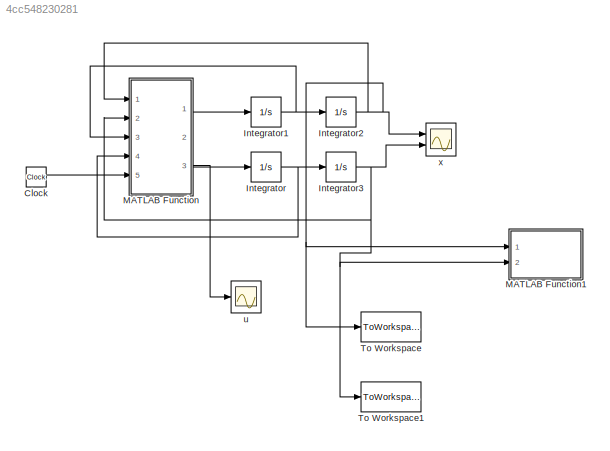
MODEL slx_4cc548230281
KIND model
CONFIG AbsTol = auto
CONFIG FixedStep = 0.01
CONFIG MaxStep = auto
CONFIG MinStep = auto
CONFIG RelTol = 1e-3
CONFIG SampleTimeConstraint = Unconstrained
CONFIG Solver = FixedStepAuto
CONFIG SolverMode = Auto
CONFIG SolverName = FixedStepAuto
CONFIG StartTime = 0.0
CONFIG StopTime = 50
BLOCK [Clock] Clock
BLOCK [Integrator] Integrator
  Ports = [1, 1]
BLOCK [Integrator] Integrator1
  Ports = [1, 1]
BLOCK [Integrator] Integrator2
  InitialCondition = pi/2
  Ports = [1, 1]
  WrapState = on
BLOCK [Integrator] Integrator3
  InitialCondition = -pi/2
  Ports = [1, 1]
  WrapState = on
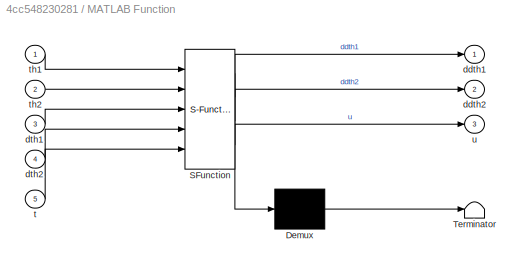
BLOCK [SubSystem] MATLAB Function
  ErrorFcn = Stateflow.Translate.translate
  PermitHierarchicalResolution = ExplicitOnly
  Ports = [5, 3]
  RequestExecContextInheritance = off
  SFBlockType = MATLAB Function
  TreatAsAtomicUnit = on
  Variant = off
BLOCK [Demux] MATLAB Function/ Demux 
  Outputs = 1
  Ports = [1, 1]
BLOCK [S-Function] MATLAB Function/ SFunction 
  EnableBusSupport = on
  FunctionName = sf_sfun
  PortCounts = [5 4]
  Ports = [5, 4]
  SFunctionDeploymentMode = off
  Tag = Stateflow S-Function pendubotSim 2
BLOCK [Terminator] MATLAB Function/ Terminator 
BLOCK [Outport] MATLAB Function/ddth1
  IconDisplay = Port number
BLOCK [Outport] MATLAB Function/ddth2
  IconDisplay = Port number
  Port = 2
BLOCK [Inport] MATLAB Function/dth1
  IconDisplay = Port number
  Port = 3
BLOCK [Inport] MATLAB Function/dth2
  IconDisplay = Port number
  Port = 4
BLOCK [Inport] MATLAB Function/t
  IconDisplay = Port number
  Port = 5
BLOCK [Inport] MATLAB Function/th1
  IconDisplay = Port number
BLOCK [Inport] MATLAB Function/th2
  IconDisplay = Port number
  Port = 2
BLOCK [Outport] MATLAB Function/u
  IconDisplay = Port number
  Port = 3
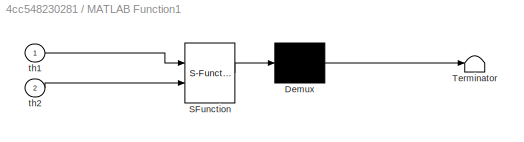
BLOCK [SubSystem] MATLAB Function1
  Commented = on
  ErrorFcn = Stateflow.Translate.translate
  PermitHierarchicalResolution = ExplicitOnly
  Ports = [2]
  RequestExecContextInheritance = off
  SFBlockType = MATLAB Function
  TreatAsAtomicUnit = on
  Variant = off
BLOCK [Demux] MATLAB Function1/ Demux 
  Outputs = 1
  Ports = [1, 1]
BLOCK [S-Function] MATLAB Function1/ SFunction 
  EnableBusSupport = on
  FunctionName = sf_sfun
  PortCounts = [2 1]
  Ports = [2, 1]
  SFunctionDeploymentMode = off
  Tag = Stateflow S-Function pendubotSim 1
BLOCK [Terminator] MATLAB Function1/ Terminator 
BLOCK [Inport] MATLAB Function1/th1
  IconDisplay = Port number
BLOCK [Inport] MATLAB Function1/th2
  IconDisplay = Port number
  Port = 2
BLOCK [ToWorkspace] To Workspace
  FixptAsFi = on
  MaxDataPoints = inf
  Ports = [1]
  SampleTime = -1
  Save2DSignal = 3-D array (concatenate along third dimension)
  VariableName = th1Sim
BLOCK [ToWorkspace] To Workspace1
  FixptAsFi = on
  MaxDataPoints = inf
  Ports = [1]
  SampleTime = -1
  Save2DSignal = 3-D array (concatenate along third dimension)
  VariableName = th2Sim
BLOCK [Scope] u
  Ports = [1]
  ScopeSpecificationString = Simulink.scopes.TimeScopeBlockCfg('CurrentConfiguration', extmgr.ConfigurationSet(extmgr.Configuration('Core','General UI',true),extmgr.Configuration('Core','Source UI',true),extmgr.Configuration('Sources','WiredSimulink',true,'DataLoggingVariableName','ScopeData1'),extmgr.Configuration('Visuals','Time Domain',true,'SerializedDisplays',{struct('MinYLimReal','-11.31655','MaxYLimReal','11.31201','YL...<+1411ch>
BLOCK [Scope] x
  NumInputPorts = 2
  Ports = [2]
  ScopeSpecificationString = Simulink.scopes.TimeScopeBlockCfg('CurrentConfiguration', extmgr.ConfigurationSet(extmgr.Configuration('Core','General UI',true),extmgr.Configuration('Core','Source UI',true),extmgr.Configuration('Sources','WiredSimulink',true),extmgr.Configuration('Visuals','Time Domain',true,'SerializedDisplays',{struct('MinYLimReal','-3.90555','MaxYLimReal','3.77203','YLabelReal','','MinYLimMag','0.00000','MaxY...<+1372ch>
LINE Clock:1 -> MATLAB Function:5
NET Integrator1:1 -> Integrator2:1, MATLAB Function:3
NET Integrator2:1 -> MATLAB Function1:1, MATLAB Function:1, To Workspace:1, x:1
NET Integrator3:1 -> MATLAB Function1:2, MATLAB Function:2, To Workspace1:1, x:2
NET Integrator:1 -> Integrator3:1, MATLAB Function:4
LINE MATLAB Function:1 -> Integrator1:1
LINE MATLAB Function:2 -> Integrator:1
LINE MATLAB Function:3 -> u:1
note: NET lines group one-source signal fan-out (src -> all destinations, sorted); 1:1 wires keep LINE
CHART MATLAB Function1 states=1 transitions=1
  STATE_LABEL 'eML_blk_kernel()'
  STATE_LABEL "SCRIPT:\nfunction visPend(th1,th2)\nl1=0.1;\nl2=0.1;\nr1 = [l1*cos(th1);l1*sin(th1)];\nr2 = [l1*cos(th1)+l2*cos(th2);l1*sin(th1)+l2*sin(th2)];\n\no0 = [0;0]; \no1 = r1;\no2 = r2;\nv= [o0 o1 o2];\n\nplot(v(1,:),v(2,:),'-o', 'LineWidth',2, 'MarkerSize',10)\ngrid on\naxis vis3d equal;\naxis([-0.25 0.25 -0.25 0.25 -0.25 0.25])\nxlabel('x');\nylabel('y');\nzlabel('z');\nview([0,90]);\ndrawnow"
CHART MATLAB Function states=1 transitions=1
  STATE_LABEL 'eML_blk_kernel()'
  STATE_LABEL "SCRIPT:\nfunction [ddth1,ddth2,u] = pendubot(th1,th2,dth1,dth2,t)\n%INPUT\n% time(t), x(th1,th2,dth1,dth2)\n%OUTPUT\n% second time-derivative of theta_1(ddth1) and theta_2(ddth2)\n\n% Set params\nl1 = 0.1;\ng = 9.806; \n\nm1 = 0.18;\nm2 = 0.06;\n\nc1 = 0.06;\nc2 = 0.045;\nJ1 = 0.037;\nJ2 = 0.00011; \n\nk1 = 1;\nk2 = 0.00001;\n\n% Set equ's\ng11 = m1*c1^2+m2*l1^2+J1;\ng21 = m2*l1*c2*cos(th1-th2);\ng12 = m2*l1*c2*cos(th1-th...<+1163ch>"
